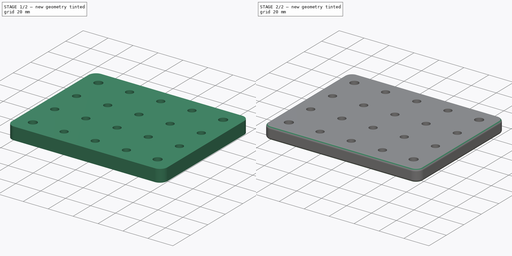
[diagram: build sequence overview — one tinted view per stage of 2, left to right]
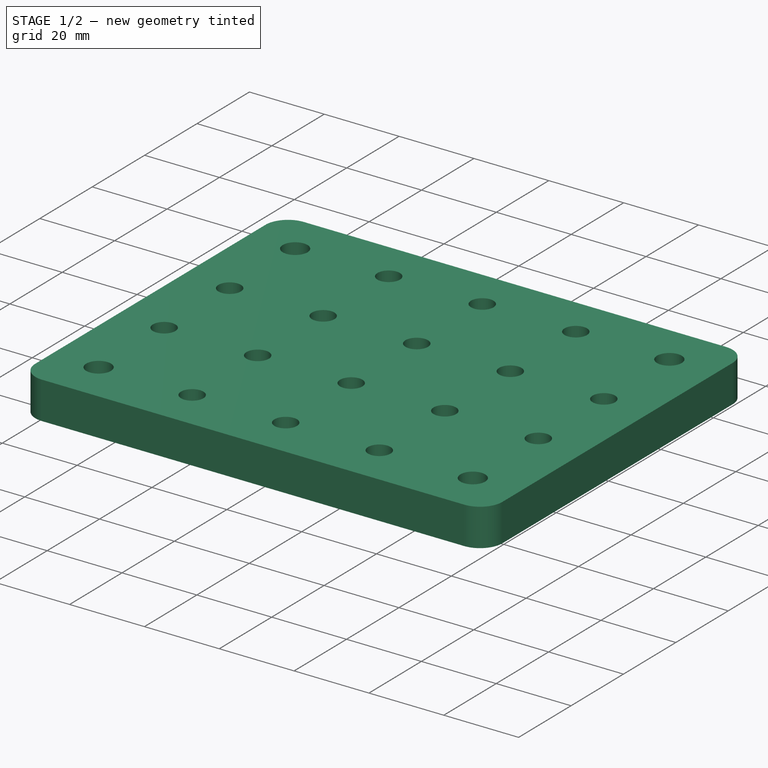
[diagram: stage 1 of 2 — iso view after this stage's code; geometry added in this stage tinted green]
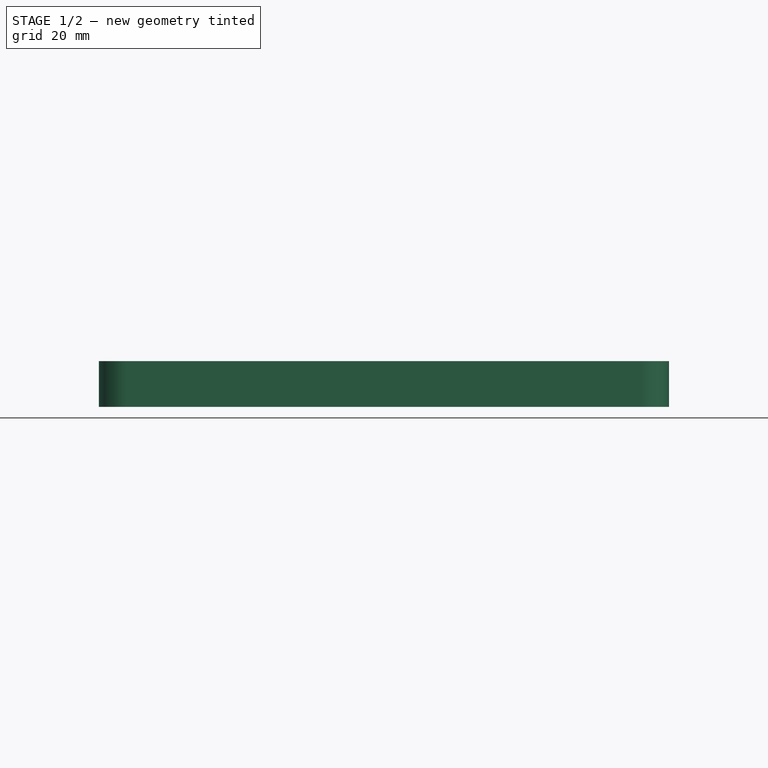
[diagram: stage 1 of 2 — front view after this stage's code; geometry added in this stage tinted green]
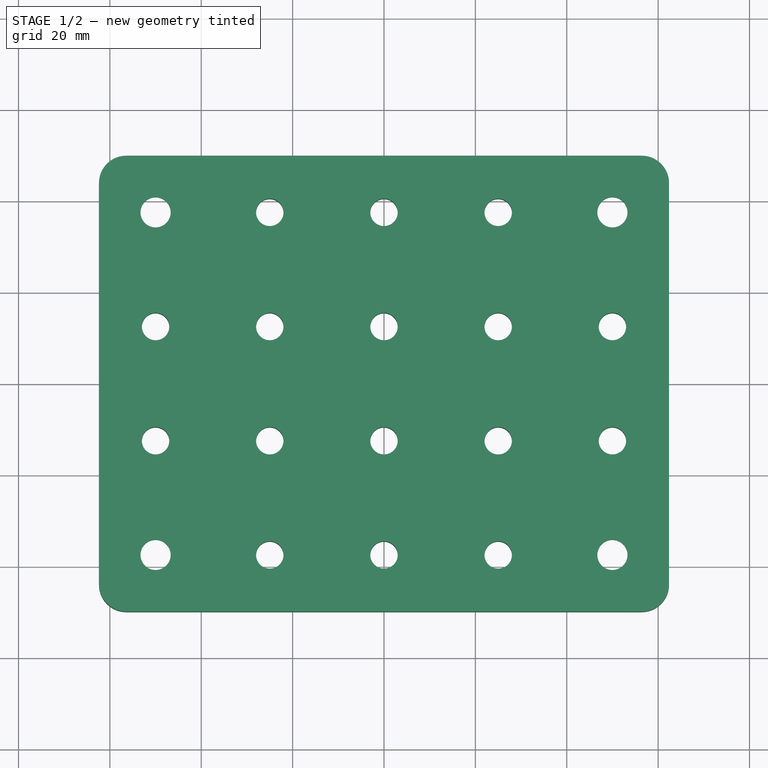
[diagram: stage 1 of 2 — top view after this stage's code; geometry added in this stage tinted green]
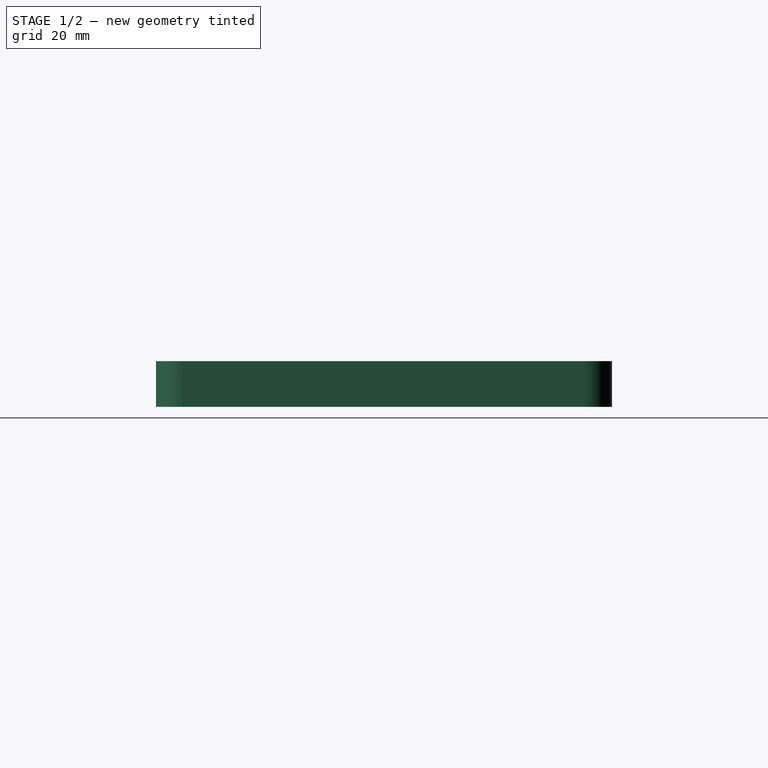
[diagram: stage 1 of 2 — right view after this stage's code; geometry added in this stage tinted green]
FCSTD DOCUMENT  (FreeCAD 0.20R29410 (Git))
Label: LaserBasePlate
License: All rights reserved
LicenseURL: http://en.wikipedia.org/wiki/All_rights_reserved
objects: Sketcher::SketchObject×2, PartDesign::Fillet×2, PartDesign::Pad×1, PartDesign::Hole×1, PartDesign::Body×1
note: 11 computed .brp shape members not serialized (recipe doc carries the construction recipe); baked Part::Feature solids carry a one-line shape summary decoded from their .brp

FEATURE [Sketcher::SketchObject] Sketch
  FullyConstrained = true
  MapMode = 5
  Support = -> [XY_Plane]
  sketch-geometry (34):
    g0: LineSegment StartX=-56.4 StartY=49.9 StartZ=0 EndX=56.4 EndY=49.9 EndZ=0
    g1: LineSegment StartX=62.4 StartY=43.9 StartZ=0 EndX=62.4 EndY=-43.9 EndZ=0
    g2: LineSegment StartX=56.4 StartY=-49.9 StartZ=0 EndX=-56.4 EndY=-49.9 EndZ=0
    g3: LineSegment StartX=-62.4 StartY=-43.9 StartZ=0 EndX=-62.4 EndY=43.9 EndZ=0
    g4: Circle CenterX=50 CenterY=-37.5 CenterZ=0 NormalX=0 NormalY=0 NormalZ=1 AngleXU=0 Radius=3
    g5: LineSegment StartX=-83.8337 StartY=-37.5 StartZ=0 EndX=87.6637 EndY=-37.5 EndZ=0
    g6: LineSegment StartX=50 StartY=59.2711 StartZ=0 EndX=50 EndY=-60.0456 EndZ=0
    g7: Circle CenterX=25 CenterY=-37.5 CenterZ=0 NormalX=0 NormalY=0 NormalZ=1 AngleXU=0 Radius=3
    g8: Circle CenterX=3e-16 CenterY=-37.5 CenterZ=0 NormalX=0 NormalY=0 NormalZ=1 AngleXU=0 Radius=3
    g9: Circle CenterX=-25 CenterY=-37.5 CenterZ=0 NormalX=0 NormalY=0 NormalZ=1 AngleXU=0 Radius=3
    g10: Circle CenterX=-50 CenterY=-37.5 CenterZ=0 NormalX=0 NormalY=0 NormalZ=1 AngleXU=0 Radius=3
    g11: Circle CenterX=50 CenterY=-12.5 CenterZ=0 NormalX=0 NormalY=0 NormalZ=1 AngleXU=0 Radius=3
    g12: Circle CenterX=50 CenterY=12.5 CenterZ=0 NormalX=0 NormalY=0 NormalZ=1 AngleXU=0 Radius=3
    g13: Circle CenterX=-50 CenterY=-12.5 CenterZ=0 NormalX=0 NormalY=0 NormalZ=1 AngleXU=0 Radius=3
    g14: Circle CenterX=-25 CenterY=-12.5 CenterZ=0 NormalX=0 NormalY=0 NormalZ=1 AngleXU=0 Radius=3
    g15: Circle CenterX=0 CenterY=-12.5 CenterZ=0 NormalX=0 NormalY=0 NormalZ=1 AngleXU=0 Radius=3
    g16: Circle CenterX=25 CenterY=-12.5 CenterZ=0 NormalX=0 NormalY=0 NormalZ=1 AngleXU=0 Radius=3
    g17: Circle CenterX=-50 CenterY=12.5 CenterZ=0 NormalX=0 NormalY=0 NormalZ=1 AngleXU=0 Radius=3
    g18: Circle CenterX=-25 CenterY=12.5 CenterZ=0 NormalX=0 NormalY=0 NormalZ=1 AngleXU=0 Radius=3
    g19: Circle CenterX=0 CenterY=12.5 CenterZ=0 NormalX=0 NormalY=0 NormalZ=1 AngleXU=0 Radius=3
    g20: Circle CenterX=25 CenterY=12.5 CenterZ=0 NormalX=0 NormalY=0 NormalZ=1 AngleXU=0 Radius=3
    g21: Circle CenterX=-25 CenterY=37.5 CenterZ=0 NormalX=0 NormalY=0 NormalZ=1 AngleXU=0 Radius=3
    g22: Circle CenterX=0 CenterY=37.5 CenterZ=0 NormalX=0 NormalY=0 NormalZ=1 AngleXU=0 Radius=3
    g23: Circle CenterX=25 CenterY=37.5 CenterZ=0 NormalX=0 NormalY=0 NormalZ=1 AngleXU=0 Radius=3
    g24: Circle CenterX=-50 CenterY=37.5 CenterZ=0 NormalX=0 NormalY=0 NormalZ=1 AngleXU=0 Radius=3
    g25: ArcOfCircle CenterX=-56.4 CenterY=43.9 CenterZ=0 NormalX=0 NormalY=0 NormalZ=1 AngleXU=0 Radius=6 StartAngle=1.5708 EndAngle=3.14159
    g26: GeomPoint X=-62.4 Y=49.9 Z=0
    g27: ArcOfCircle CenterX=56.4 CenterY=43.9 CenterZ=0 NormalX=0 NormalY=0 NormalZ=1 AngleXU=0 Radius=6 StartAngle=1e-16 EndAngle=1.5708
    g28: GeomPoint X=62.4 Y=49.9 Z=0
    g29: ArcOfCircle CenterX=56.4 CenterY=-43.9 CenterZ=0 NormalX=0 NormalY=0 NormalZ=1 AngleXU=0 Radius=6 StartAngle=4.71239 EndAngle=6.28319
    g30: GeomPoint X=62.4 Y=-49.9 Z=0
    g31: ArcOfCircle CenterX=-56.4 CenterY=-43.9 CenterZ=0 NormalX=0 NormalY=0 NormalZ=1 AngleXU=0 Radius=6 StartAngle=3.14159 EndAngle=4.71239
    g32: GeomPoint X=-62.4 Y=-49.9 Z=0
    g33: Circle CenterX=50 CenterY=37.5 CenterZ=0 NormalX=0 NormalY=0 NormalZ=1 AngleXU=0 Radius=3
  constraints (91):
    c: Horizontal(g2)
    c: Vertical(g1)
    c: DistanceY(g30,g4) = 12.4
    c: DistanceX(g4,g30) = 12.4
    c: Symmetric(g28,g26,g-2)
    c: Symmetric(g26,g32,g-1)
    c: Diameter(g4) = 6
    c: Horizontal(g5)
    c: Vertical(g6)
    c: PointOnObject(g4,g5)
    c: PointOnObject(g4,g6)
    c: PointOnObject(g7,g5)
    c: PointOnObject(g8,g5)
    c: PointOnObject(g9,g5)
    c: PointOnObject(g10,g5)
    c: Equal(g7,g4)
    c: Equal(g8,g4)
    c: Equal(g9,g4)
    c: Equal(g10,g4)
    c: Distance(g4,g7) = 25
    c: Distance(g7,g8) = 25
    c: Distance(g9,g8) = 25
    c: Distance(g10,g9) = 25
    c: PointOnObject(g11,g6)
    c: PointOnObject(g12,g6)
    c: Distance(g4,g11) = 25
    c: Equal(g11,g4)
    c: Distance(g11,g12) = 25
    c: Equal(g12,g4)
    c: DistanceX(g32,g10) = 12.4
    c: PointOnObject(g15,g-2)
    c: PointOnObject(g19,g-2)
    c: PointOnObject(g22,g-2)
    c: Horizontal(g16,g11)
    c: Equal(g16,g4)
    c: Horizontal(g15,g11)
    c: Horizontal(g14,g11)
    c: Horizontal(g13,g11)
    c: Equal(g15,g4)
    c: Equal(g14,g4)
    c: Equal(g13,g4)
    c: Equal(g20,g4)
    c: Equal(g19,g4)
    c: Equal(g18,g4)
    c: Equal(g17,g4)
    c: Equal(g23,g4)
    c: Equal(g22,g4)
    c: Equal(g21,g4)
    c: Equal(g24,g4)
    c: Vertical(g16,g7)
    c: Vertical(g14,g9)
    c: Vertical(g13,g10)
    c: Vertical(g20,g7)
    c: Vertical(g18,g9)
    c: Vertical(g17,g10)
    c: Vertical(g21,g18)
    c: Vertical(g24,g17)
    c: Horizontal(g20,g12)
    c: Horizontal(g12,g19)
    c: Horizontal(g12,g18)
    c: Horizontal(g17,g12)
    c: Vertical(g23,g7)
    c: Block(g6)
    c: Block(g5)
    c: PointOnObject(g26,g3)
    c: PointOnObject(g26,g0)
    c: Tangent(g3,g25) = 1.5708
    c: Tangent(g0,g25) = 1.5708
    c: PointOnObject(g28,g0)
    c: PointOnObject(g28,g1)
    c: Tangent(g0,g27) = 1.5708
    c: Tangent(g1,g27) = 1.5708
    c: PointOnObject(g30,g1)
    c: PointOnObject(g30,g2)
    c: Tangent(g1,g29) = 1.5708
    c: Tangent(g2,g29) = 1.5708
    c: PointOnObject(g32,g2)
    c: PointOnObject(g32,g3)
    c: Tangent(g2,g31) = 1.5708
    c: Tangent(g3,g31) = 1.5708
    c: Radius(g27) = 6
    c: Equal(g29,g27)
    c: Equal(g27,g31)
    c: Equal(g25,g27)
    c: PointOnObject(g33,g6)
    c: Distance(g12,g33) = 25
    c: Equal(g33,g4)
    c: Horizontal(g23,g33)
    c: Horizontal(g22,g23)
    c: Horizontal(g21,g22)
    c: Horizontal(g24,g21)
FEATURE [PartDesign::Pad] Pad
  Direction = (0,0,1)
  Length = 10
  Length2 = 10
  Profile = -> Sketch
  ReferenceAxis = -> Sketch [N_Axis]
  Refine = true
  Type = 0
FEATURE [Sketcher::SketchObject] Sketch001
  FullyConstrained = true
  MapMode = 5
  Placement = pos=(0,0,0) rot=(1,0,0;3.14159rad)
  Support = -> [Pad]
  sketch-geometry (4):
    g0: Circle CenterX=50 CenterY=-37.5 CenterZ=0 NormalX=0 NormalY=0 NormalZ=1 AngleXU=0 Radius=3
    g1: Circle CenterX=-50 CenterY=-37.5 CenterZ=0 NormalX=0 NormalY=0 NormalZ=1 AngleXU=0 Radius=3
    g2: Circle CenterX=-50 CenterY=37.5 CenterZ=0 NormalX=0 NormalY=0 NormalZ=1 AngleXU=0 Radius=3
    g3: Circle CenterX=50 CenterY=37.5 CenterZ=0 NormalX=0 NormalY=0 NormalZ=1 AngleXU=0 Radius=3
  constraints (9):
    c: DistanceX(g-1,g3) = 50
    c: DistanceY(g-1,g3) = 37.5
    c: Symmetric(g3,g0,g-1)
    c: Symmetric(g1,g0,g-2)
    c: Symmetric(g2,g3,g-2)
    c: Diameter(g3) = 6
    c: Equal(g0,g3)
    c: Equal(g1,g3)
    c: Equal(g2,g3)
FEATURE [PartDesign::Hole] Hole
  BaseFeature = -> Pad
  CustomThreadClearance = 0
  Depth = 25
  DepthType = 0
  Diameter = 6.6
  DrillForDepth = false
  DrillPoint = 0
  DrillPointAngle = 118
  HoleCutCountersinkAngle = 90
  HoleCutCustomValues = false
  HoleCutDepth = 6.4
  HoleCutDiameter = 11
  HoleCutType = 1
  ModelThread = false
  Profile = -> Sketch001
  Refine = true
  Tapered = false
  TaperedAngle = 90
  ThreadClass = 0
  ThreadDepth = 25
  ThreadDepthType = 0
  ThreadDirection = 0
  ThreadFit = 0
  ThreadSize = 14
  ThreadType = 1
  Threaded = false
  UseCustomThreadClearance = false
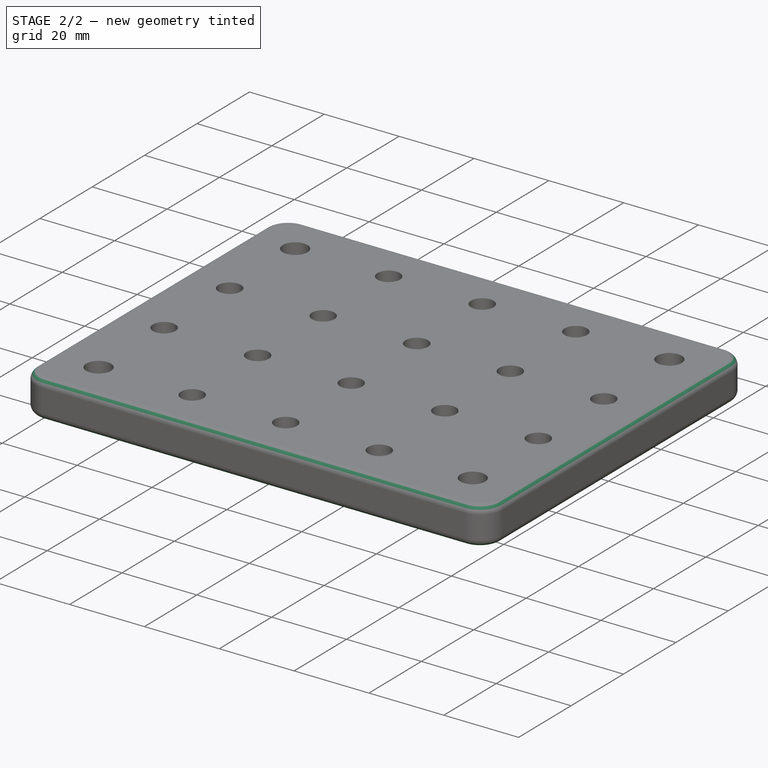
[diagram: stage 2 of 2 — iso view after this stage's code; geometry added in this stage tinted green]
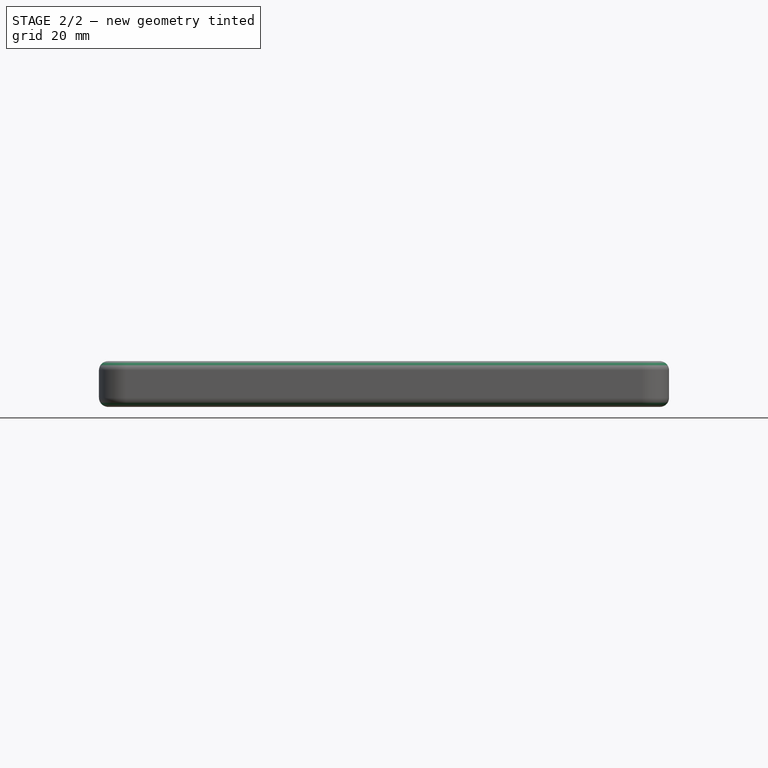
[diagram: stage 2 of 2 — front view after this stage's code; geometry added in this stage tinted green]
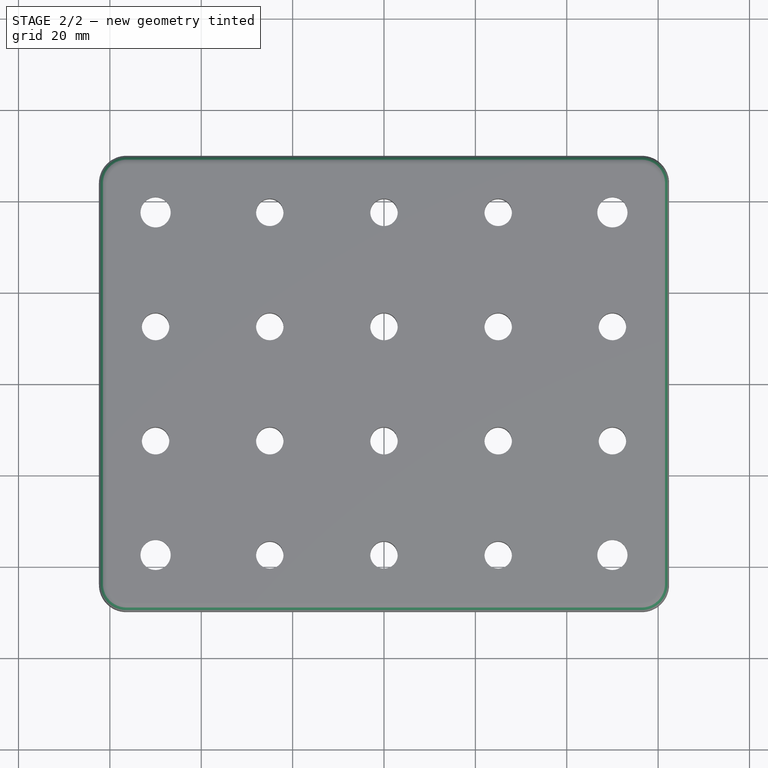
[diagram: stage 2 of 2 — top view after this stage's code; geometry added in this stage tinted green]
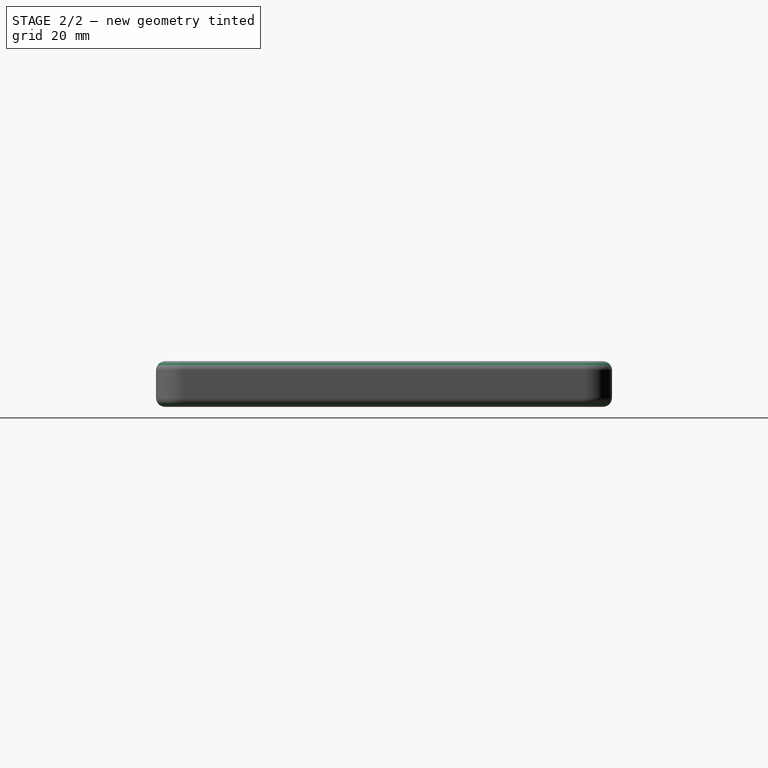
[diagram: stage 2 of 2 — right view after this stage's code; geometry added in this stage tinted green]
FEATURE [PartDesign::Fillet] Fillet
  Base = -> Hole [Edge12]
  BaseFeature = -> Hole
  Radius = 2
  Refine = true
  SupportTransform = false
  UseAllEdges = false
FEATURE [PartDesign::Fillet] Fillet001
  Base = -> Fillet [Edge13]
  BaseFeature = -> Fillet
  Radius = 2
  Refine = true
  SupportTransform = false
  UseAllEdges = false
FEATURE [PartDesign::Body] Body
  Group = -> [Sketch,Sketch001,Pad,Hole,Fillet,Fillet001]
  Origin = -> Origin
  Tip = -> Fillet001
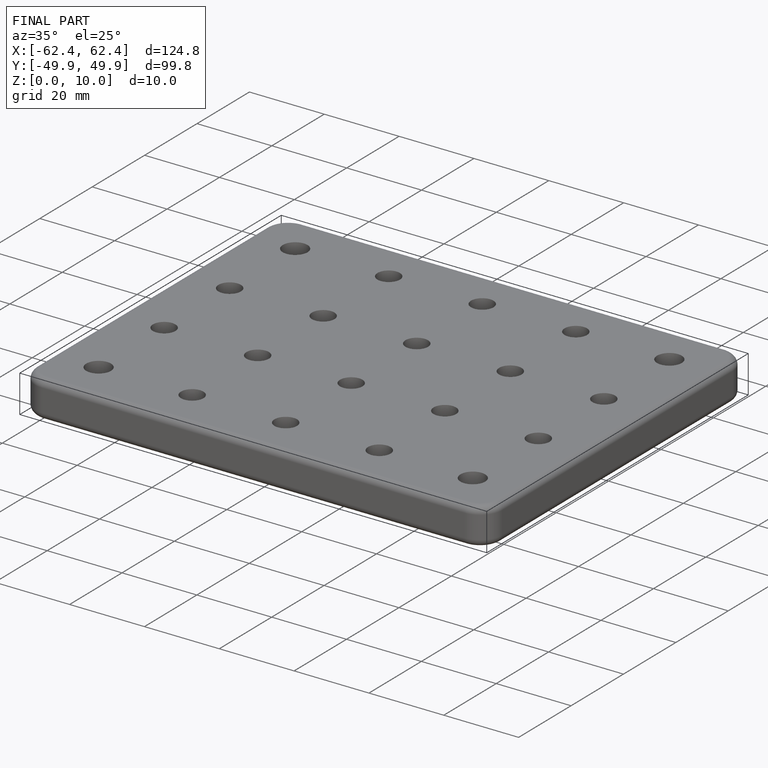
[diagram: finished part — iso view with bounding-box wireframe]
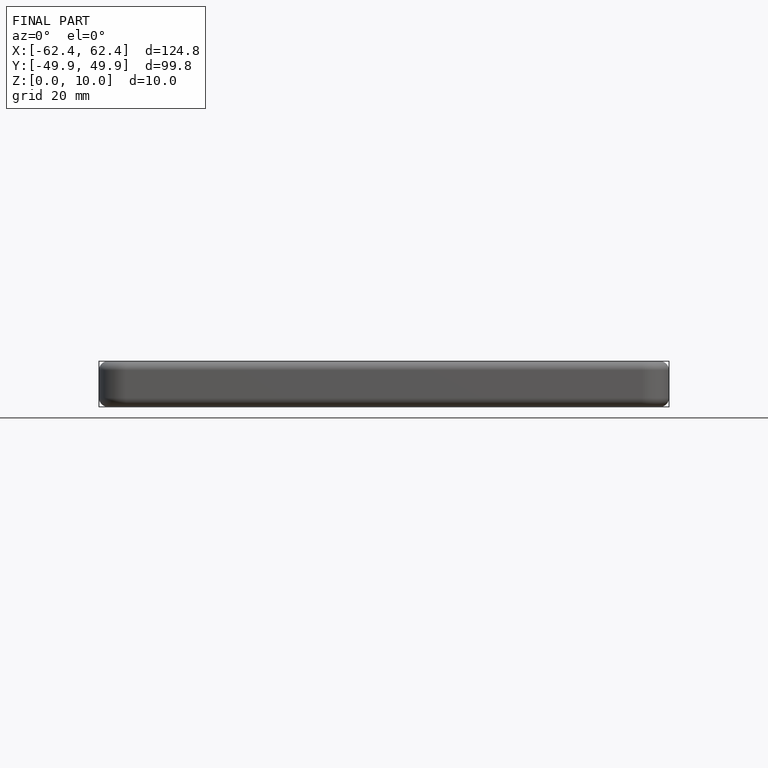
[diagram: finished part — front view with bounding-box wireframe]
